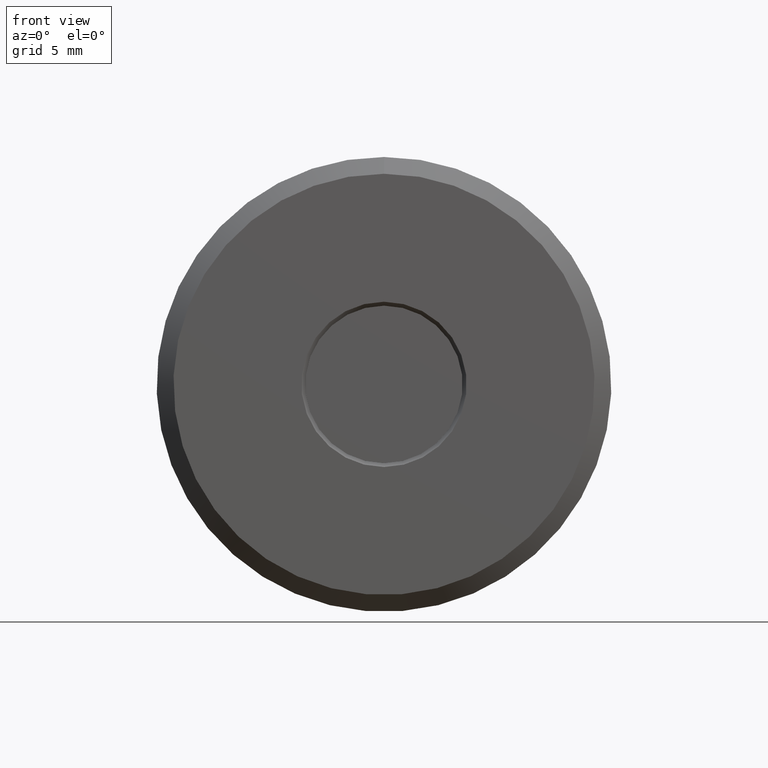
[diagram: clean part render]
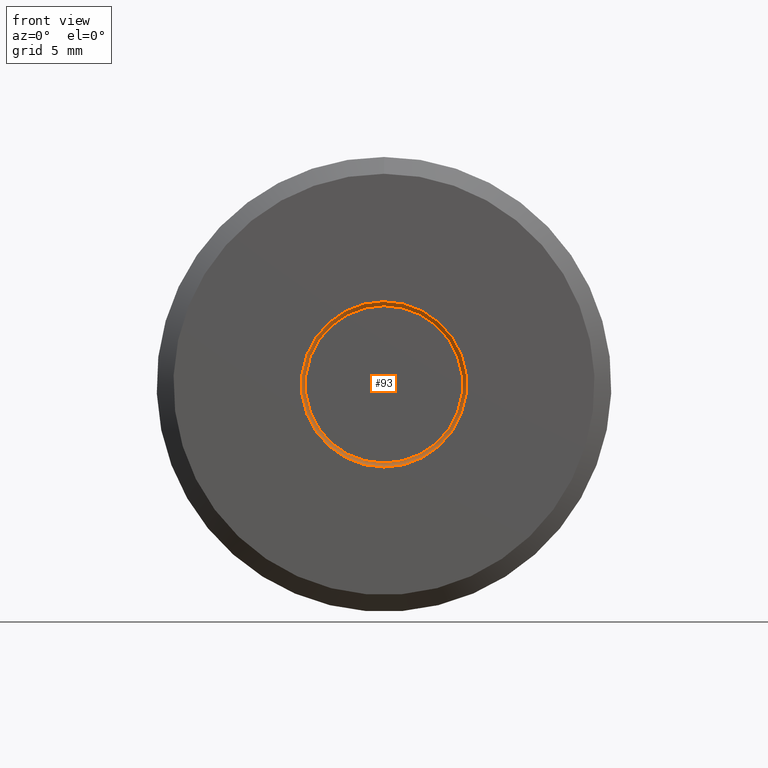
[diagram: same view with one face highlighted and labeled with its STEP entity id]
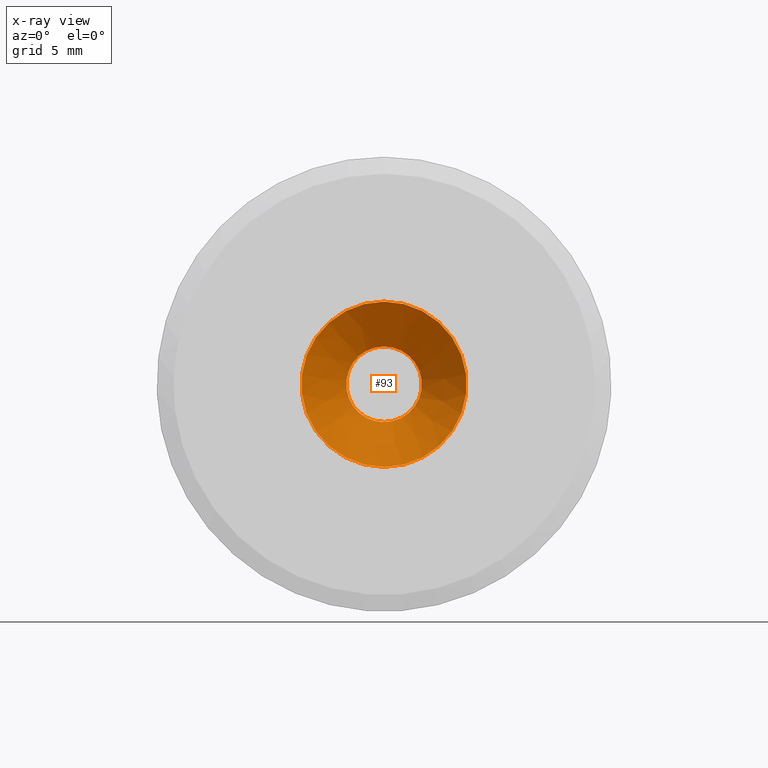
[diagram: x-ray of the same camera — body ghosted, the highlighted face saturated]
A machine part, front view. The second image highlights one B-rep face of the part: STEP entity #93.
The next image is the same camera in x-ray: the body ghosted, the highlighted face saturated — about 0% of this face is hidden behind the body in this view.
In plain terms, the highlighted conical surface has half-angle 45 deg.
Its self-contained STEP definition (entity closure, byte-faithful):
#46 = FACE_OUTER_BOUND ( 'NONE', #66, .T. ) ;
#62 = FACE_BOUND ( 'NONE', #411, .T. ) ;
#66 = EDGE_LOOP ( 'NONE', ( #492 ) ) ;
#93 = ADVANCED_FACE ( 'NONE', ( #62, #46 ), #149, .F. ) ;
#99 = AXIS2_PLACEMENT_3D ( 'NONE', #277, #363, #358 ) ;
#106 = CARTESIAN_POINT ( 'NONE',  ( 0.0000000000000000000, -9.172088794783619300E-019, 0.0000000000000000000 ) ) ;
#121 = CIRCLE ( 'NONE', #359, 0.06750000000000000400 ) ;
#139 = CARTESIAN_POINT ( 'NONE',  ( 0.0000000000000000000, -9.172088794783619300E-019, 0.1476960678118644500 ) ) ;
#149 = CONICAL_SURFACE ( 'NONE', #486, 0.1476960678118644500, 0.7853981633974428400 ) ;
#171 = EDGE_CURVE ( 'NONE', #312, #312, #482, .T. ) ;
#226 = DIRECTION ( 'NONE',  ( 0.0000000000000000000, -1.000000000000000000, 0.0000000000000000000 ) ) ;
#250 = EDGE_CURVE ( 'NONE', #523, #523, #121, .T. ) ;
#277 = CARTESIAN_POINT ( 'NONE',  ( 0.0000000000000000000, -9.172088794783619300E-019, 0.0000000000000000000 ) ) ;
#312 = VERTEX_POINT ( 'NONE', #139 ) ;
#343 = DIRECTION ( 'NONE',  ( -0.0000000000000000000, 1.000000000000000000, -0.0000000000000000000 ) ) ;
#345 = CARTESIAN_POINT ( 'NONE',  ( 0.0000000000000000000, 0.08019606781186530700, 0.0000000000000000000 ) ) ;
#354 = CARTESIAN_POINT ( 'NONE',  ( 0.0000000000000000000, 0.08019606781186530700, 0.06750000000000000400 ) ) ;
#358 = DIRECTION ( 'NONE',  ( 0.0000000000000000000, 0.0000000000000000000, 1.000000000000000000 ) ) ;
#359 = AXIS2_PLACEMENT_3D ( 'NONE', #345, #343, #426 ) ;
#363 = DIRECTION ( 'NONE',  ( -0.0000000000000000000, 1.000000000000000000, -0.0000000000000000000 ) ) ;
#402 = DIRECTION ( 'NONE',  ( 0.0000000000000000000, 0.0000000000000000000, -1.000000000000000000 ) ) ;
#411 = EDGE_LOOP ( 'NONE', ( #537 ) ) ;
#426 = DIRECTION ( 'NONE',  ( 0.0000000000000000000, 0.0000000000000000000, 1.000000000000000000 ) ) ;
#482 = CIRCLE ( 'NONE', #99, 0.1476960678118644500 ) ;
#486 = AXIS2_PLACEMENT_3D ( 'NONE', #106, #226, #402 ) ;
#492 = ORIENTED_EDGE ( 'NONE', *, *, #171, .F. ) ;
#523 = VERTEX_POINT ( 'NONE', #354 ) ;
#537 = ORIENTED_EDGE ( 'NONE', *, *, #250, .T. ) ;